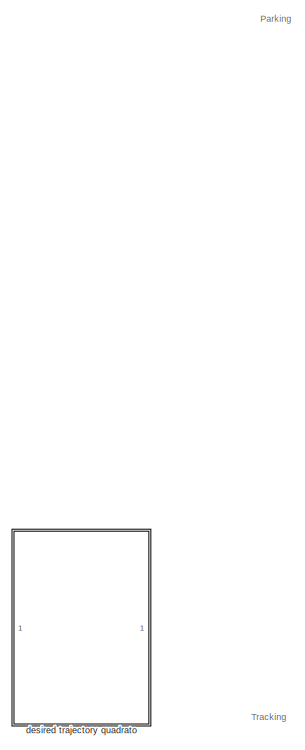
[diagram: root canvas - part 1/6, top left region]
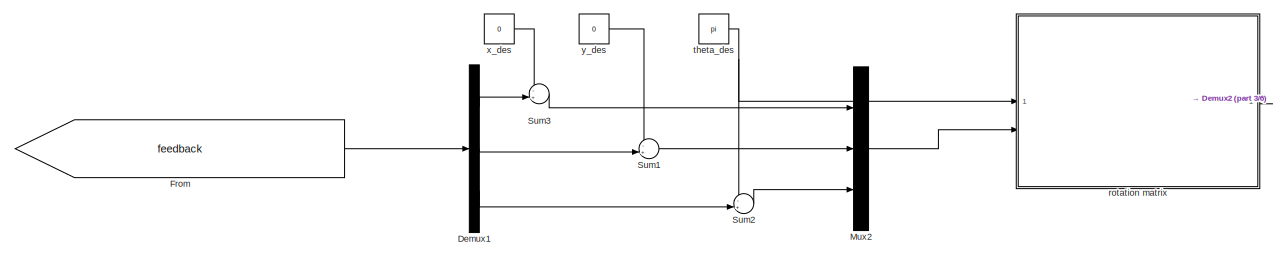
[diagram: root canvas - part 2/6, top left region]
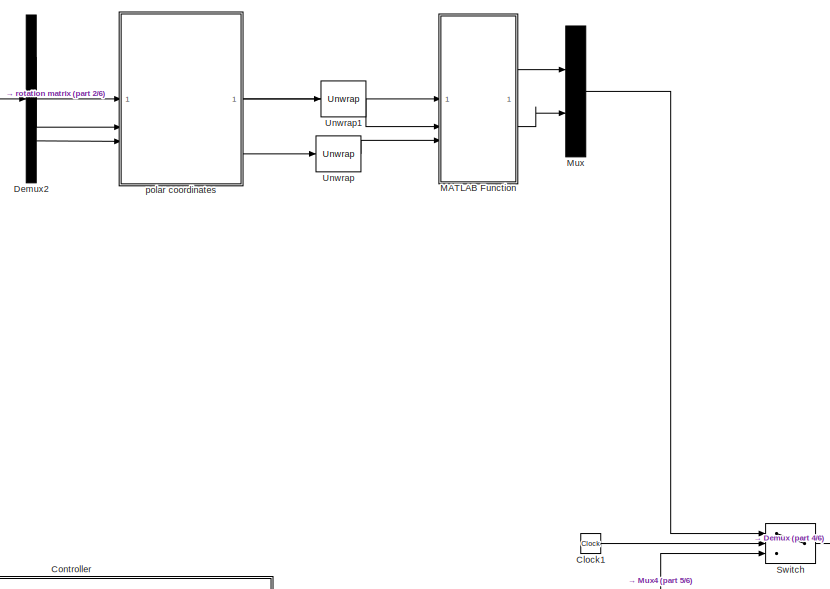
[diagram: root canvas - part 3/6, top center region]
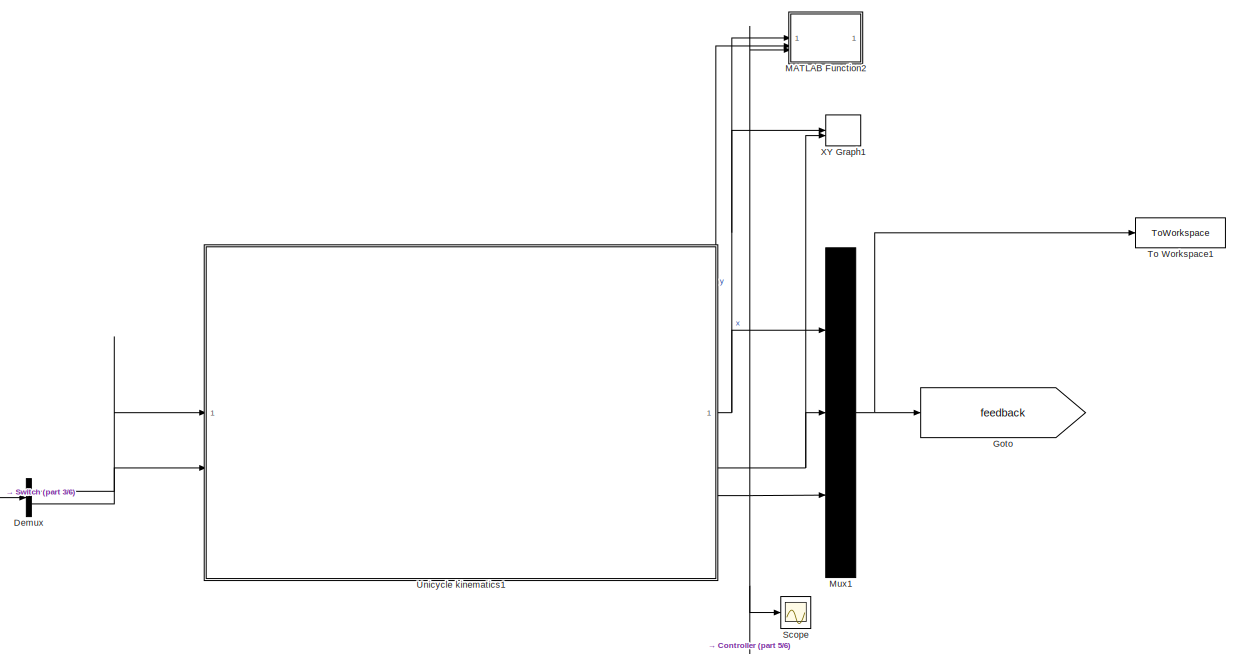
[diagram: root canvas - part 4/6, middle right region]
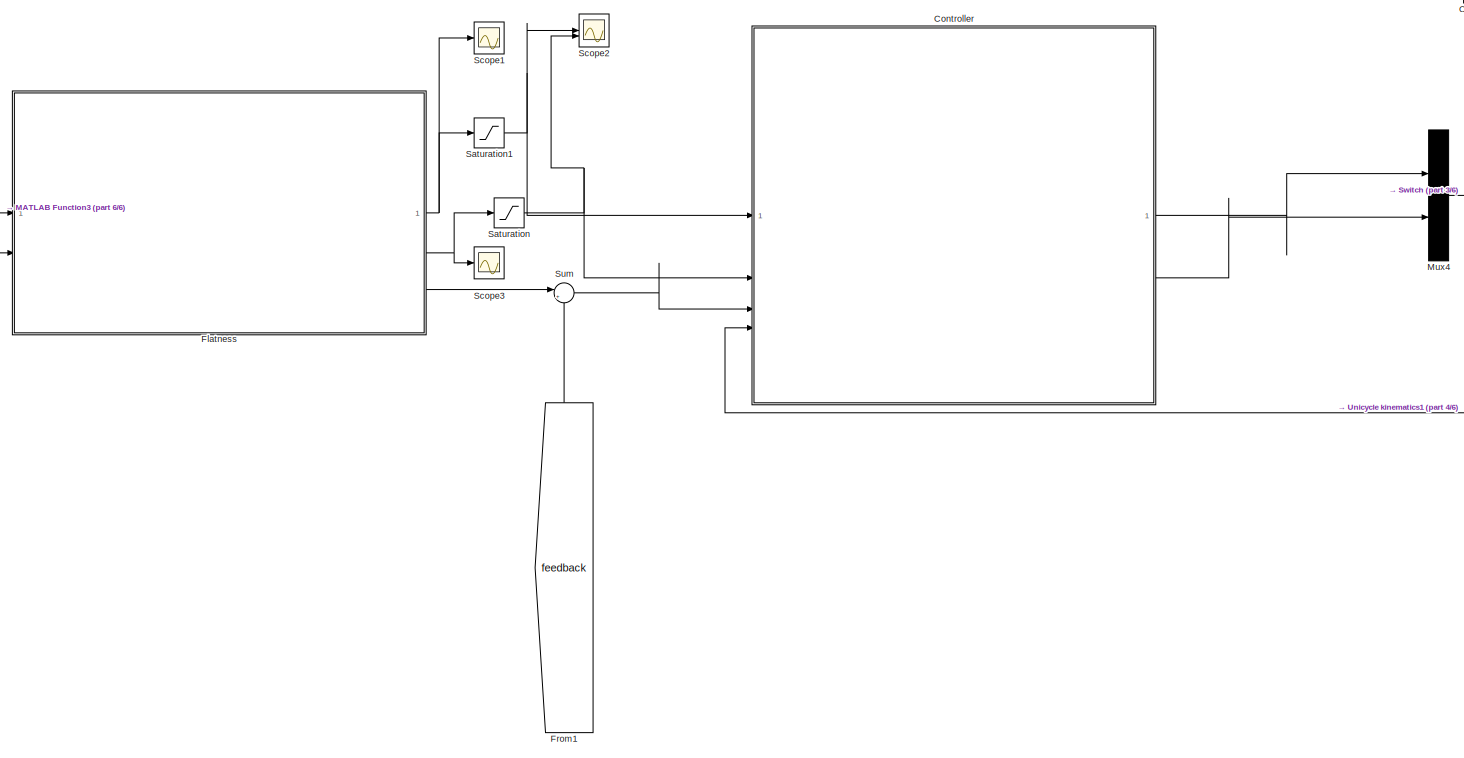
[diagram: root canvas - part 5/6, bottom center region]
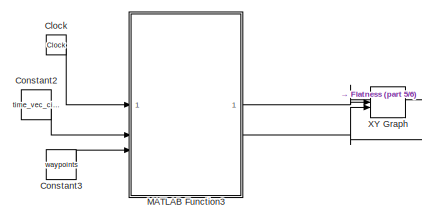
[diagram: root canvas - part 6/6, middle left region]
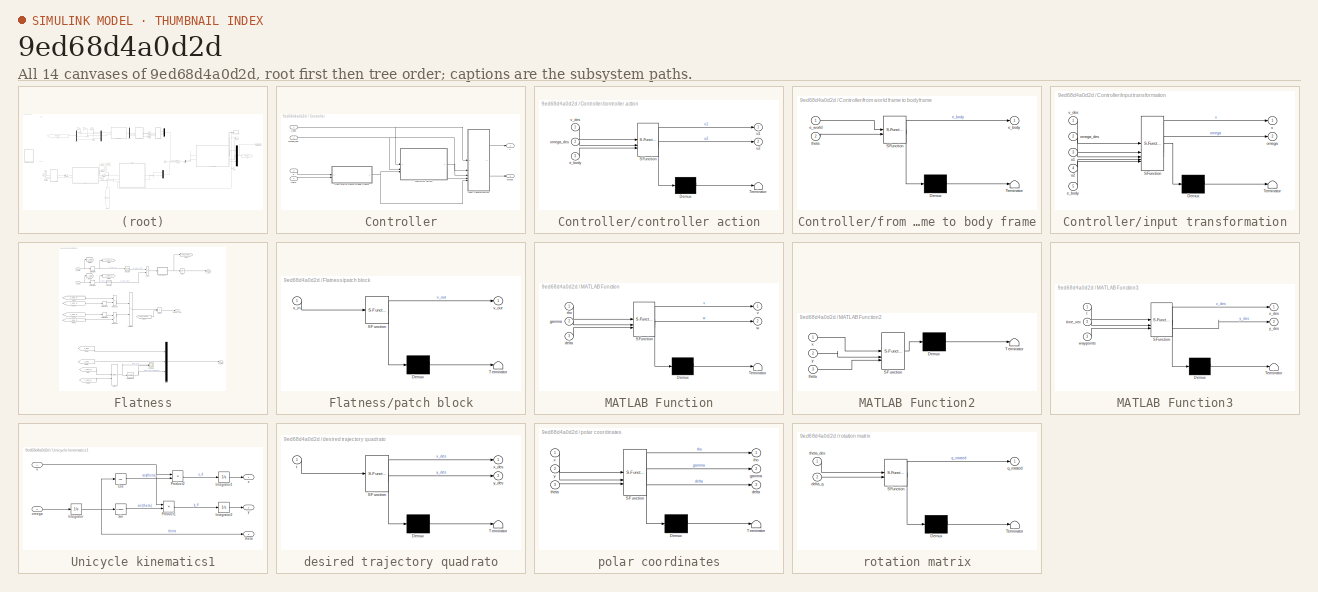
[diagram: thumbnail index - all 14 canvases of the model, root first then tree order]
MODEL slx_9ed68d4a0d2d
KIND model
CONFIG AbsTol = auto
CONFIG EnableMultiTasking = off
CONFIG FixedStep = 0.0001
CONFIG MaxStep = 0.01
CONFIG MinStep = auto
CONFIG RelTol = 1e-3
CONFIG SampleTimeConstraint = Unconstrained
CONFIG SolverName = ode5
CONFIG StartTime = 0.0
CONFIG StopTime = 25
BLOCK [Clock] Clock
BLOCK [Clock] Clock1
BLOCK [Constant] Constant2
  Value = time_vec_circ
BLOCK [Constant] Constant3
  Value = waypoints
BLOCK [SubSystem] Controller
BLOCK [SubSystem] Controller/controller action
  ErrorFcn = Stateflow.Translate.translate
  PermitHierarchicalResolution = ExplicitOnly
  SFBlockType = MATLAB Function
  TreatAsAtomicUnit = on
BLOCK [Demux] Controller/controller action/ Demux 
  Outputs = 1
BLOCK [S-Function] Controller/controller action/ SFunction 
  EnableBusSupport = off
  FunctionName = sf_sfun
  PortCounts = [3 3]
  SFcnIsStateOwnerBlock = off
  SFunctionDeploymentMode = off
  Tag = Stateflow S-Function 1
BLOCK [Terminator] Controller/controller action/ Terminator 
BLOCK [Inport] Controller/controller action/e_body
  Port = 3
BLOCK [Inport] Controller/controller action/omega_des
  Port = 2
BLOCK [Outport] Controller/controller action/u1
BLOCK [Outport] Controller/controller action/u2
  Port = 2
BLOCK [Inport] Controller/controller action/v_des
BLOCK [Inport] Controller/e
  Port = 3
BLOCK [SubSystem] Controller/from world frame to body frame
  ErrorFcn = Stateflow.Translate.translate
  PermitHierarchicalResolution = ExplicitOnly
  SFBlockType = MATLAB Function
  TreatAsAtomicUnit = on
BLOCK [Demux] Controller/from world frame to body frame/ Demux 
  Outputs = 1
BLOCK [S-Function] Controller/from world frame to body frame/ SFunction 
  EnableBusSupport = off
  FunctionName = sf_sfun
  PortCounts = [2 2]
  SFcnIsStateOwnerBlock = off
  SFunctionDeploymentMode = off
  Tag = Stateflow S-Function 2
BLOCK [Terminator] Controller/from world frame to body frame/ Terminator 
BLOCK [Outport] Controller/from world frame to body frame/e_body
BLOCK [Inport] Controller/from world frame to body frame/e_world
BLOCK [Inport] Controller/from world frame to body frame/theta
  Port = 2
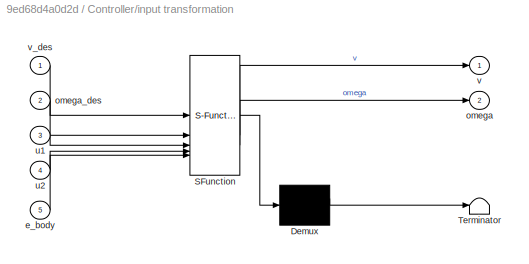
BLOCK [SubSystem] Controller/input transformation
  ErrorFcn = Stateflow.Translate.translate
  PermitHierarchicalResolution = ExplicitOnly
  SFBlockType = MATLAB Function
  TreatAsAtomicUnit = on
BLOCK [Demux] Controller/input transformation/ Demux 
  Outputs = 1
BLOCK [S-Function] Controller/input transformation/ SFunction 
  EnableBusSupport = off
  FunctionName = sf_sfun
  PortCounts = [5 3]
  SFcnIsStateOwnerBlock = off
  SFunctionDeploymentMode = off
  Tag = Stateflow S-Function 3
BLOCK [Terminator] Controller/input transformation/ Terminator 
BLOCK [Inport] Controller/input transformation/e_body
  Port = 5
BLOCK [Outport] Controller/input transformation/omega
  Port = 2
BLOCK [Inport] Controller/input transformation/omega_des
  Port = 2
BLOCK [Inport] Controller/input transformation/u1
  Port = 3
BLOCK [Inport] Controller/input transformation/u2
  Port = 4
BLOCK [Outport] Controller/input transformation/v
BLOCK [Inport] Controller/input transformation/v_des
BLOCK [Outport] Controller/omega
  Port = 2
BLOCK [Inport] Controller/omega_des
  Port = 2
BLOCK [Inport] Controller/theta
  Port = 4
BLOCK [Outport] Controller/v
BLOCK [Inport] Controller/v_des
BLOCK [Demux] Demux
  Outputs = 2
BLOCK [Demux] Demux1
  Outputs = 3
BLOCK [Demux] Demux2
  Outputs = 3
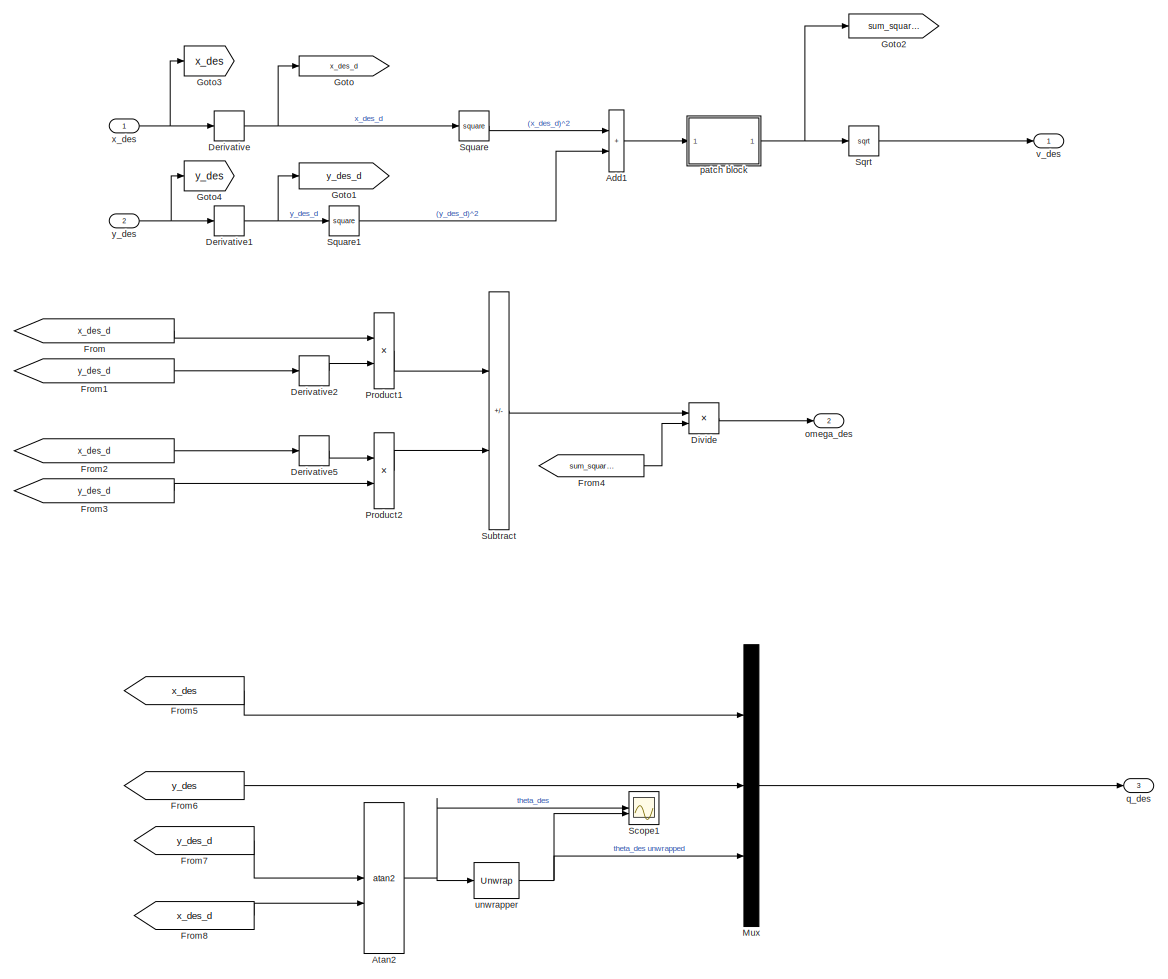
[diagram: Flatness - part 1/1, most of the canvas]
BLOCK [SubSystem] Flatness
BLOCK [Sum] Flatness/Add1
  IconShape = rectangular
BLOCK [Trigonometry] Flatness/Atan2
  Operator = atan2
BLOCK [Derivative] Flatness/Derivative
BLOCK [Derivative] Flatness/Derivative1
BLOCK [Derivative] Flatness/Derivative2
BLOCK [Derivative] Flatness/Derivative5
BLOCK [Product] Flatness/Divide
  Inputs = */
BLOCK [From] Flatness/From
  GotoTag = x_des_d
BLOCK [From] Flatness/From1
  GotoTag = y_des_d
BLOCK [From] Flatness/From2
  GotoTag = x_des_d
BLOCK [From] Flatness/From3
  GotoTag = y_des_d
BLOCK [From] Flatness/From4
  GotoTag = sum_squares
BLOCK [From] Flatness/From5
  GotoTag = x_des
BLOCK [From] Flatness/From6
  GotoTag = y_des
BLOCK [From] Flatness/From7
  GotoTag = y_des_d
BLOCK [From] Flatness/From8
  GotoTag = x_des_d
BLOCK [Goto] Flatness/Goto
  GotoTag = x_des_d
BLOCK [Goto] Flatness/Goto1
  GotoTag = y_des_d
BLOCK [Goto] Flatness/Goto2
  GotoTag = sum_squares
BLOCK [Goto] Flatness/Goto3
  GotoTag = x_des
BLOCK [Goto] Flatness/Goto4
  GotoTag = y_des
BLOCK [Mux] Flatness/Mux
  DisplayOption = bar
  Inputs = 3
BLOCK [Product] Flatness/Product1
BLOCK [Product] Flatness/Product2
BLOCK [Scope] Flatness/Scope1
  ActiveDisplayYMaximum = 10.473474164834791
  ActiveDisplayYMinimum = -16.66586404144536
  DataLoggingDecimateData = on
  DataLoggingDecimation = 1
  DataLoggingSaveFormat = Array
  DataLoggingVariableName = ScopeData2
  Floating = off
  GraphicalSettings = {"AxesScalingProperties":{"AlignXAxis":"Center","AlignYAxis":"Center","AutoScaleXAxisLimits":false,"AxesScaling":"Manual","AxesScalingNumUpdates":10,"ExpandOnly":true,"ScaleAxesLimitsAtStop":false,"XAxisDataRange":100,"YAxisDataRange":80},"DisplayProperties":{"ColorOrder":["auto","auto","auto","auto","auto","auto","auto","auto","auto","auto","auto","auto","auto","auto","auto","auto","auto","auto",...<+2145ch>
  MultipleDisplayCache = [{"MaxYLimMag":5.497787143782138,"MaxYLimReal":10.473474164834791,"MinYLimMag":0,"MinYLimReal":-16.66586404144536,"PlotAsMagnitudePhase":false,"ShowGrid":true,"ShowLegend":true,"Title":"%<SignalLabel>","YLabel":""}]
  NumInputPorts = 2
  ScopeFrameLocation = window
  ShowLegend = on
  WasSavedAsWebScope = on
  WindowPosition = [-16.000000,-11.000000,1924.000000,1061.000000,]
BLOCK [Sqrt] Flatness/Sqrt
BLOCK [Math] Flatness/Square
  Operator = square
BLOCK [Math] Flatness/Square1
  Operator = square
BLOCK [Sum] Flatness/Subtract
  IconShape = rectangular
  Inputs = +-
BLOCK [Outport] Flatness/omega_des
  Port = 2
BLOCK [SubSystem] Flatness/patch block
  ErrorFcn = Stateflow.Translate.translate
  PermitHierarchicalResolution = ExplicitOnly
  SFBlockType = MATLAB Function
  TreatAsAtomicUnit = on
BLOCK [Demux] Flatness/patch block/ Demux 
  Outputs = 1
BLOCK [S-Function] Flatness/patch block/ SFunction 
  EnableBusSupport = off
  FunctionName = sf_sfun
  PortCounts = [1 2]
  SFcnIsStateOwnerBlock = off
  SFunctionDeploymentMode = off
  Tag = Stateflow S-Function 5
BLOCK [Terminator] Flatness/patch block/ Terminator 
BLOCK [Inport] Flatness/patch block/v_in
BLOCK [Outport] Flatness/patch block/v_out
BLOCK [Outport] Flatness/q_des
  Port = 3
BLOCK [Reference] Flatness/unwrapper  REF=dspsigops/Unwrap
  SourceBlock = dspsigops/Unwrap
  SourceType = Unwrap
  UserDataPersistent = on
BLOCK [Outport] Flatness/v_des
BLOCK [Inport] Flatness/x_des
BLOCK [Inport] Flatness/y_des
  Port = 2
BLOCK [From] From
  GotoTag = feedback
BLOCK [From] From1
  GotoTag = feedback
  NameLocation = right
BLOCK [Goto] Goto
  GotoTag = feedback
BLOCK [SubSystem] MATLAB Function
  ErrorFcn = Stateflow.Translate.translate
  PermitHierarchicalResolution = ExplicitOnly
  SFBlockType = MATLAB Function
  TreatAsAtomicUnit = on
BLOCK [Demux] MATLAB Function/ Demux 
  Outputs = 1
BLOCK [S-Function] MATLAB Function/ SFunction 
  EnableBusSupport = off
  FunctionName = sf_sfun
  PortCounts = [3 3]
  SFcnIsStateOwnerBlock = off
  SFunctionDeploymentMode = off
  Tag = Stateflow S-Function 8
BLOCK [Terminator] MATLAB Function/ Terminator 
BLOCK [Inport] MATLAB Function/delta
  Port = 3
BLOCK [Inport] MATLAB Function/gamma
  Port = 2
BLOCK [Inport] MATLAB Function/rho
BLOCK [Outport] MATLAB Function/v
BLOCK [Outport] MATLAB Function/w
  Port = 2
BLOCK [SubSystem] MATLAB Function2
  ErrorFcn = Stateflow.Translate.translate
  PermitHierarchicalResolution = ExplicitOnly
  SFBlockType = MATLAB Function
  TreatAsAtomicUnit = on
BLOCK [Demux] MATLAB Function2/ Demux 
  Outputs = 1
BLOCK [S-Function] MATLAB Function2/ SFunction 
  EnableBusSupport = off
  FunctionName = sf_sfun
  PortCounts = [3 1]
  SFcnIsStateOwnerBlock = off
  SFunctionDeploymentMode = off
  Tag = Stateflow S-Function 9
BLOCK [Terminator] MATLAB Function2/ Terminator 
BLOCK [Inport] MATLAB Function2/theta
  Port = 3
BLOCK [Inport] MATLAB Function2/x
BLOCK [Inport] MATLAB Function2/y
  Port = 2
BLOCK [SubSystem] MATLAB Function3
  ErrorFcn = Stateflow.Translate.translate
  PermitHierarchicalResolution = ExplicitOnly
  SFBlockType = MATLAB Function
  TreatAsAtomicUnit = on
BLOCK [Demux] MATLAB Function3/ Demux 
  Outputs = 1
BLOCK [S-Function] MATLAB Function3/ SFunction 
  EnableBusSupport = off
  FunctionName = sf_sfun
  PortCounts = [3 3]
  SFcnIsStateOwnerBlock = off
  SFunctionDeploymentMode = off
  Tag = Stateflow S-Function 10
BLOCK [Terminator] MATLAB Function3/ Terminator 
BLOCK [Inport] MATLAB Function3/t
BLOCK [Inport] MATLAB Function3/time_vec
  Port = 2
BLOCK [Inport] MATLAB Function3/waypoints
  Port = 3
BLOCK [Outport] MATLAB Function3/x_des
BLOCK [Outport] MATLAB Function3/y_des
  Port = 2
BLOCK [Mux] Mux
  DisplayOption = bar
  Inputs = 2
BLOCK [Mux] Mux1
  DisplayOption = bar
  Inputs = 3
BLOCK [Mux] Mux2
  DisplayOption = bar
  Inputs = 3
BLOCK [Mux] Mux4
  DisplayOption = bar
  Inputs = 2
BLOCK [Saturate] Saturation
  LowerLimit = -ang_velocity
  UpperLimit = ang_velocity
BLOCK [Saturate] Saturation1
  LowerLimit = -speed
  UpperLimit = speed
BLOCK [Scope] Scope
  ActiveDisplayYMaximum = 10.713846589075981
  ActiveDisplayYMinimum = -2.2678628072381004
  DataLoggingVariableName = ScopeData1
  Floating = off
  GraphicalSettings = {"AxesScalingProperties":{"AlignXAxis":"Center","AlignYAxis":"Center","AutoScaleXAxisLimits":false,"AxesScaling":"Manual","AxesScalingNumUpdates":10,"ExpandOnly":true,"ScaleAxesLimitsAtStop":false,"XAxisDataRange":100,"YAxisDataRange":80},"DisplayProperties":{"ColorOrder":["auto","auto","auto","auto","auto","auto","auto","auto","auto","auto","auto","auto","auto","auto","auto","auto","auto","auto",...<+1944ch>
  MultipleDisplayCache = [{"MaxYLimMag":9.6120760026389611,"MaxYLimReal":10.713846589075981,"MinYLimMag":0,"MinYLimReal":-2.2678628072381004,"PlotAsMagnitudePhase":false,"ShowGrid":true,"ShowLegend":false,"Title":"%<SignalLabel>","YLabel":""}]
  NumInputPorts = 1
  ScopeFrameLocation = window
  WasSavedAsWebScope = on
  WindowPosition = [-320.000000,-148.000000,1924.000000,1061.000000,]
BLOCK [Scope] Scope1
  ActiveDisplayYMaximum = 33.790255014407059
  ActiveDisplayYMinimum = -58.541647894510909
  DataLoggingVariableName = ScopeData3
  Floating = off
  GraphicalSettings = {"AxesScalingProperties":{"AlignXAxis":"Center","AlignYAxis":"Center","AutoScaleXAxisLimits":false,"AxesScaling":"Manual","AxesScalingNumUpdates":10,"ExpandOnly":true,"ScaleAxesLimitsAtStop":false,"XAxisDataRange":100,"YAxisDataRange":80},"DisplayProperties":{"ColorOrder":["auto","auto","auto","auto","auto","auto","auto","auto","auto","auto","auto","auto","auto","auto","auto","auto","auto","auto",...<+2010ch>
  MultipleDisplayCache = [{"MaxYLimMag":14.301667362384991,"MaxYLimReal":33.790255014407059,"MinYLimMag":0,"MinYLimReal":-58.541647894510909,"PlotAsMagnitudePhase":false,"ShowGrid":true,"ShowLegend":false,"Title":"%<SignalLabel>","YLabel":""}]
  NumInputPorts = 1
  ScopeFrameLocation = window
  WasSavedAsWebScope = on
  WindowPosition = [618.000000,399.000000,657.000000,487.000000,]
BLOCK [Scope] Scope2
  ActiveDisplayYMaximum = 5.9509475084943659
  ActiveDisplayYMinimum = 0.14603727460674376
  Floating = off
  GraphicalSettings = {"AxesScalingProperties":{"AlignXAxis":"Center","AlignYAxis":"Center","AutoScaleXAxisLimits":false,"AxesScaling":"Manual","AxesScalingNumUpdates":10,"ExpandOnly":true,"ScaleAxesLimitsAtStop":false,"XAxisDataRange":100,"YAxisDataRange":80},"DisplayProperties":{"ColorOrder":["auto","auto","auto","auto","auto","auto","auto","auto","auto","auto","auto","auto","auto","auto","auto","auto","auto","auto",...<+2133ch>
  MultipleDisplayCache = [{"MaxYLimMag":116203.78948869799,"MaxYLimReal":5.9509475084943659,"MinYLimMag":0,"MinYLimReal":0.14603727460674376,"PlotAsMagnitudePhase":false,"ShowGrid":true,"ShowLegend":true,"Title":"%<SignalLabel>","YLabel":""}]
  NumInputPorts = 2
  ScopeFrameLocation = window
  ShowLegend = on
  WasSavedAsWebScope = on
  WindowPosition = [680.000000,330.000000,560.000000,420.000000,]
BLOCK [Scope] Scope3
  ActiveDisplayYMaximum = 7.1473011331260653E+9
  ActiveDisplayYMinimum = -7.9417132034456789E+8
  DataLoggingVariableName = ScopeData4
  Floating = off
  GraphicalSettings = {"Style":{"BackgroundColor":[0.12941176470588237,0.12941176470588237,0.12941176470588237],"AxesColor":[0.07058823529411765,0.07058823529411765,0.07058823529411765],"LabelsColor":[0.8509803921568627,0.8509803921568627,0.8509803921568627],"PreserveColors":false,"Visible":[true],"LineStyle":["-"],"LineWidth":[1.5],"BarWidth":[0.9],"LineColor":["auto"],"LineFaceAlpha":[1],"LineEdgeAlpha":[1],"Marker":...<+1999ch>
  MultipleDisplayCache = [{"MaxYLimMag":7.1473011331260653E+9,"MaxYLimReal":7.1473011331260653E+9,"MinYLimMag":0,"MinYLimReal":-7.9417132034456789E+8,"PlotAsMagnitudePhase":false,"ShowGrid":true,"ShowLegend":false,"Title":"%<SignalLabel>","YLabel":""}]
  NumInputPorts = 1
  ScopeFrameLocation = window
  WasSavedAsWebScope = on
  WindowPosition = [680.000000,330.000000,560.000000,420.000000,]
BLOCK [Sum] Sum
  Inputs = |+-
BLOCK [Sum] Sum1
  Inputs = -+|
BLOCK [Sum] Sum2
  Inputs = -+|
BLOCK [Sum] Sum3
  Inputs = -+|
BLOCK [Switch] Switch
  Criteria = u2 > Threshold
  InputSameDT = off
  SaturateOnIntegerOverflow = off
  Threshold = 17
BLOCK [ToWorkspace] To Workspace1
  FixptAsFi = on
  MaxDataPoints = inf
  SampleTime = -1
  SaveFormat = Timeseries
  VariableName = sim_pose1
BLOCK [SubSystem] Unicycle kinematics1
BLOCK [Trigonometry] Unicycle kinematics1/Cos
  Operator = cos
BLOCK [Integrator] Unicycle kinematics1/Integrator
  InitialCondition = pi
BLOCK [Integrator] Unicycle kinematics1/Integrator1
  InitialCondition = 10
BLOCK [Integrator] Unicycle kinematics1/Integrator2
BLOCK [Product] Unicycle kinematics1/Product1
BLOCK [Product] Unicycle kinematics1/Product2
BLOCK [Trigonometry] Unicycle kinematics1/Sin
BLOCK [Inport] Unicycle kinematics1/omega
  Port = 2
BLOCK [Outport] Unicycle kinematics1/theta
  Port = 3
BLOCK [Inport] Unicycle kinematics1/v
BLOCK [Outport] Unicycle kinematics1/x
BLOCK [Outport] Unicycle kinematics1/y
  Port = 2
BLOCK [Reference] Unwrap  REF=dspsigops/Unwrap
  SourceBlock = dspsigops/Unwrap
  SourceType = Unwrap
  UserDataPersistent = on
BLOCK [Reference] Unwrap1  REF=dspsigops/Unwrap
  SourceBlock = dspsigops/Unwrap
  SourceType = Unwrap
  UserDataPersistent = on
BLOCK [Record] XY Graph
  CompatibilityTag = XY
  FileSettingsInternal = {"entries":[{"content":{"excelSettings":{"content":{},"type":"Streamout.ExcelSettings"},"parquetSettings":{"content":{},"type":"Streamout.ParquetSettings"}},"type":"Streamout.FileSettingStorage","uuid":""}],"packageUris":["http:\/\/schema.mathworks.com\/mf0\/streamout_blocks\/R2020a"],"version":"1.0"}
  FrameSettings = [0, 0]
  Layout = [1 1]
  NumPorts = 2.0
  SignalsInternal = {"entries":[{"content":{"signals":[{"content":{"blockPath":[],"dimensions":[1],"domain":"","lineColor":"#a2142f","plots":[ 1 ],"port":1,"sid":[""],"signalID":1,"signalName":"MATLAB Function3:1"},"type":"RecordBlkView.Signal","uuid":""},{"content":{"blockPath":[],"dimensions":[1],"domain":"","lineColor":"#139fff","plots":[ 1 ],"port":2,"sid":[""],"signalID":2,"signalName":"MATLAB Function3:2"},"typ...<+182ch>
  VisualizationBindings = {"xyplotplugin":{"info":[{"series":[{"bindingParametersList":[{"parameter":"X-Axis","signalID":1,"signalName":"MATLAB Function3:1"},{"parameter":"Y-Axis","signalID":2,"signalName":"MATLAB Function3:2"}],"seriesID":0}],"subplotID":1}]}}
BLOCK [Record] XY Graph1
  CompatibilityTag = XY
  FileSettingsInternal = {"entries":[{"content":{"excelSettings":{"content":{},"type":"Streamout.ExcelSettings"},"parquetSettings":{"content":{},"type":"Streamout.ParquetSettings"}},"type":"Streamout.FileSettingStorage","uuid":""}],"packageUris":["http:\/\/schema.mathworks.com\/mf0\/streamout_blocks\/R2020a"],"version":"1.0"}
  FrameSettings = [0, 0]
  Layout = [1 1]
  NumPorts = 2.0
  SignalsInternal = {"entries":[{"content":{"signals":[{"content":{"blockPath":[],"dimensions":[1],"domain":"","lineColor":"#a2142f","plots":[ 1 ],"port":1,"sid":[""],"signalID":1,"signalName":"x"},"type":"RecordBlkView.Signal","uuid":""},{"content":{"blockPath":[],"dimensions":[1],"domain":"","lineColor":"#139fff","plots":[ 1 ],"port":2,"sid":[""],"signalID":2,"signalName":"y"},"type":"RecordBlkView.Signal","uuid":"...<+148ch>
  VisualizationBindings = {"xyplotplugin":{"info":[{"series":[{"bindingParametersList":[{"parameter":"X-Axis","signalID":1,"signalName":"x"},{"parameter":"Y-Axis","signalID":2,"signalName":"y"}],"seriesID":0}],"subplotID":1}]}}
BLOCK [SubSystem] desired trajectory quadrato
  ErrorFcn = Stateflow.Translate.translate
  PermitHierarchicalResolution = ExplicitOnly
  SFBlockType = MATLAB Function
  TreatAsAtomicUnit = on
BLOCK [Demux] desired trajectory quadrato/ Demux 
  Outputs = 1
BLOCK [S-Function] desired trajectory quadrato/ SFunction 
  EnableBusSupport = off
  FunctionName = sf_sfun
  PortCounts = [1 3]
  SFcnIsStateOwnerBlock = off
  SFunctionDeploymentMode = off
  Tag = Stateflow S-Function 6
BLOCK [Terminator] desired trajectory quadrato/ Terminator 
BLOCK [Inport] desired trajectory quadrato/t
BLOCK [Outport] desired trajectory quadrato/x_des
BLOCK [Outport] desired trajectory quadrato/y_des
  Port = 2
BLOCK [SubSystem] polar coordinates
  ErrorFcn = Stateflow.Translate.translate
  PermitHierarchicalResolution = ExplicitOnly
  SFBlockType = MATLAB Function
  TreatAsAtomicUnit = on
BLOCK [Demux] polar coordinates/ Demux 
  Outputs = 1
BLOCK [S-Function] polar coordinates/ SFunction 
  EnableBusSupport = off
  FunctionName = sf_sfun
  PortCounts = [3 4]
  SFcnIsStateOwnerBlock = off
  SFunctionDeploymentMode = off
  Tag = Stateflow S-Function 11
BLOCK [Terminator] polar coordinates/ Terminator 
BLOCK [Outport] polar coordinates/delta
  Port = 3
BLOCK [Outport] polar coordinates/gamma
  Port = 2
BLOCK [Outport] polar coordinates/rho
BLOCK [Inport] polar coordinates/theta
  Port = 3
BLOCK [Inport] polar coordinates/x
BLOCK [Inport] polar coordinates/y
  Port = 2
BLOCK [SubSystem] rotation matrix
  ErrorFcn = Stateflow.Translate.translate
  PermitHierarchicalResolution = ExplicitOnly
  SFBlockType = MATLAB Function
  TreatAsAtomicUnit = on
BLOCK [Demux] rotation matrix/ Demux 
  Outputs = 1
BLOCK [S-Function] rotation matrix/ SFunction 
  EnableBusSupport = off
  FunctionName = sf_sfun
  PortCounts = [2 2]
  SFcnIsStateOwnerBlock = off
  SFunctionDeploymentMode = off
  Tag = Stateflow S-Function 4
BLOCK [Terminator] rotation matrix/ Terminator 
BLOCK [Inport] rotation matrix/delta_q
  Port = 2
BLOCK [Outport] rotation matrix/q_rotated
BLOCK [Inport] rotation matrix/theta_des
BLOCK [Constant] theta_des
  Value = pi
BLOCK [Constant] x_des
  Value = 0
BLOCK [Constant] y_des
  Value = 0
ANNOTATION (root): Parking
ANNOTATION (root): Tracking
LINE Clock1:1 -> Switch:2
LINE Clock:1 -> MATLAB Function3:1
LINE Constant2:1 -> MATLAB Function3:2
LINE Constant3:1 -> MATLAB Function3:3
LINE Controller/controller action:1 -> Controller/input transformation:3
LINE Controller/controller action:2 -> Controller/input transformation:4
LINE Controller/e:1 -> Controller/from world frame to body frame:1
NET Controller/from world frame to body frame:1 -> Controller/controller action:3, Controller/input transformation:5
LINE Controller/input transformation:1 -> Controller/v:1
LINE Controller/input transformation:2 -> Controller/omega:1
NET Controller/omega_des:1 -> Controller/controller action:2, Controller/input transformation:2
LINE Controller/theta:1 -> Controller/from world frame to body frame:2
NET Controller/v_des:1 -> Controller/controller action:1, Controller/input transformation:1
LINE Controller:1 -> Mux4:1
LINE Controller:2 -> Mux4:2
LINE Demux1:1 -> Sum3:2
LINE Demux1:2 -> Sum1:2
LINE Demux1:3 -> Sum2:2
LINE Demux2:1 -> polar coordinates:1
LINE Demux2:2 -> polar coordinates:2
LINE Demux2:3 -> polar coordinates:3
LINE Demux:1 -> Unicycle kinematics1:1
LINE Demux:2 -> Unicycle kinematics1:2
LINE Flatness/Add1:1 -> Flatness/patch block:1
NET Flatness/Atan2:1 -> Flatness/Scope1:1, Flatness/unwrapper:1
NET Flatness/Derivative1:1 -> Flatness/Goto1:1, Flatness/Square1:1
LINE Flatness/Derivative2:1 -> Flatness/Product1:2
LINE Flatness/Derivative5:1 -> Flatness/Product2:1
NET Flatness/Derivative:1 -> Flatness/Goto:1, Flatness/Square:1
LINE Flatness/Divide:1 -> Flatness/omega_des:1
LINE Flatness/From1:1 -> Flatness/Derivative2:1
LINE Flatness/From2:1 -> Flatness/Derivative5:1
LINE Flatness/From3:1 -> Flatness/Product2:2
LINE Flatness/From4:1 -> Flatness/Divide:2
LINE Flatness/From5:1 -> Flatness/Mux:1
LINE Flatness/From6:1 -> Flatness/Mux:2
LINE Flatness/From7:1 -> Flatness/Atan2:1
LINE Flatness/From8:1 -> Flatness/Atan2:2
LINE Flatness/From:1 -> Flatness/Product1:1
LINE Flatness/Mux:1 -> Flatness/q_des:1
LINE Flatness/Product1:1 -> Flatness/Subtract:1
LINE Flatness/Product2:1 -> Flatness/Subtract:2
LINE Flatness/Sqrt:1 -> Flatness/v_des:1
LINE Flatness/Square1:1 -> Flatness/Add1:2
LINE Flatness/Square:1 -> Flatness/Add1:1
LINE Flatness/Subtract:1 -> Flatness/Divide:1
NET Flatness/patch block:1 -> Flatness/Goto2:1, Flatness/Sqrt:1
NET Flatness/unwrapper:1 -> Flatness/Mux:3, Flatness/Scope1:2
NET Flatness/x_des:1 -> Flatness/Derivative:1, Flatness/Goto3:1
NET Flatness/y_des:1 -> Flatness/Derivative1:1, Flatness/Goto4:1
NET Flatness:1 -> Saturation1:1, Scope1:1
NET Flatness:2 -> Saturation:1, Scope3:1
LINE Flatness:3 -> Sum:1
LINE From1:1 -> Sum:2
LINE From:1 -> Demux1:1
NET MATLAB Function3:1 -> Flatness:1, XY Graph:1
NET MATLAB Function3:2 -> Flatness:2, XY Graph:2
LINE MATLAB Function:1 -> Mux:1
LINE MATLAB Function:2 -> Mux:2
NET Mux1:1 -> Goto:1, To Workspace1:1
LINE Mux2:1 -> rotation matrix:2
LINE Mux4:1 -> Switch:3
LINE Mux:1 -> Switch:1
NET Saturation1:1 -> Controller:1, Scope2:1
NET Saturation:1 -> Controller:2, Scope2:2
LINE Sum1:1 -> Mux2:2
LINE Sum2:1 -> Mux2:3
LINE Sum3:1 -> Mux2:1
LINE Sum:1 -> Controller:3
LINE Switch:1 -> Demux:1
LINE Unicycle kinematics1/Cos:1 -> Unicycle kinematics1/Product2:2
LINE Unicycle kinematics1/Integrator1:1 -> Unicycle kinematics1/x:1
LINE Unicycle kinematics1/Integrator2:1 -> Unicycle kinematics1/y:1
NET Unicycle kinematics1/Integrator:1 -> Unicycle kinematics1/Cos:1, Unicycle kinematics1/Sin:1, Unicycle kinematics1/theta:1
LINE Unicycle kinematics1/Product1:1 -> Unicycle kinematics1/Integrator2:1
LINE Unicycle kinematics1/Product2:1 -> Unicycle kinematics1/Integrator1:1
LINE Unicycle kinematics1/Sin:1 -> Unicycle kinematics1/Product1:2
LINE Unicycle kinematics1/omega:1 -> Unicycle kinematics1/Integrator:1
NET Unicycle kinematics1/v:1 -> Unicycle kinematics1/Product1:1, Unicycle kinematics1/Product2:1
NET Unicycle kinematics1:1 -> MATLAB Function2:1, Mux1:1, XY Graph1:1
NET Unicycle kinematics1:2 -> MATLAB Function2:2, Mux1:2, XY Graph1:2
NET Unicycle kinematics1:3 -> Controller:4, MATLAB Function2:3, Mux1:3, Scope:1
LINE Unwrap1:1 -> MATLAB Function:2
LINE Unwrap:1 -> MATLAB Function:3
LINE polar coordinates:1 -> MATLAB Function:1
LINE polar coordinates:2 -> Unwrap1:1
LINE polar coordinates:3 -> Unwrap:1
LINE rotation matrix:1 -> Demux2:1
NET theta_des:1 -> Sum2:1, rotation matrix:1
LINE x_des:1 -> Sum3:1
LINE y_des:1 -> Sum1:1
note: NET lines group one-source signal fan-out (src -> all destinations, sorted); 1:1 wires keep LINE
CHART Controller/controller action states=1 transitions=1
  STATE_LABEL 'eML_blk_kernel()'
  STATE_LABEL 'SCRIPT:\nfunction [u1, u2] = fcn(v_des, omega_des, e_body)\n\n% TO DO: parametri da modfiicare\nd = 1/sqrt(2);\na = 10; %10;\n\n\n\n% parametri controllore\nk1 = 2*d*a;\n\n% if abs(v_des) < 1e-4\n%     if v_des >= 0\n%         v_des = 1e-4;\n%     else\n%         v_des = -1e-4;\n%     end\n% end\n\nk3 = k1;\nk2 = ( a^2-(omega_des)^2 ) / v_des;\n\nu1 = [-k1, 0, 0] * e_body;\nu2 = [0, -k2, -k3] * e_body;\n\n'
CHART Controller/from world frame to body frame states=1 transitions=1
  STATE_LABEL 'eML_blk_kernel()'
  STATE_LABEL 'SCRIPT:\nfunction e_body = fcn(e_world, theta)\n\n\n% Transformation matrix\nR = [cos(theta), sin(theta), 0; \n    -sin(theta), cos(theta), 0;\n    0, 0, 1];\n\n% get error in body frame\ne_body = R*e_world;\n'
CHART Controller/input transformation states=1 transitions=1
  STATE_LABEL 'eML_blk_kernel()'
  STATE_LABEL 'SCRIPT:\nfunction [v, omega] = fcn(v_des, omega_des, u1, u2, e_body)\n\n\nv = v_des * cos(e_body(3)) - u1;\nomega = omega_des - u2;\n'
CHART rotation matrix states=1 transitions=1
  STATE_LABEL 'eML_blk_kernel()'
  STATE_LABEL 'SCRIPT:\nfunction q_rotated  = fcn(theta_des, delta_q)\n\n% rotation matrix\nR = [cos(theta_des), sin(theta_des), 0;\n    -sin(theta_des), cos(theta_des), 0; \n    0,              0,              1];\n\n% rotate\nq_rotated = R*delta_q;\n'
CHART Flatness/patch block states=1 transitions=1
  STATE_LABEL 'eML_blk_kernel()'
  STATE_LABEL 'SCRIPT:\nfunction v_out = fcn(v_in)\n\nif abs(v_in) < 1e-4\n    if v_in >= 0\n        v_in = 1e-4;\n    else\n        v_in = -1e-4;\n    end\nend\nv_out = v_in;\n\n'
CHART desired trajectory quadrato states=1 transitions=1
  STATE_LABEL 'eML_blk_kernel()'
  STATE_LABEL 'SCRIPT:\nfunction [x_des, y_des] = fcn(t)\n\n% % configurable:\n% radius = 5;\n% omega_des = 0.2;\n% \n% % desired trajectory\n% x_des = -radius*cos(omega_des*t);\n% y_des = -radius*sin(omega_des*t);\n\n\n% % configurable:\n% radius = 10;\n% omega_des = 0.5;\n% \n% % desired trajectory\n% x_des = radius*cos(omega_des*t);\n% y_des = radius*sin(omega_des*t);\n% \n\n\nif t <= 10\n    x_des = 10+t;\n    y_des = 10;\nelseif  t...<+183ch>'
CHART MATLAB Function states=1 transitions=1
  STATE_LABEL 'eML_blk_kernel()'
  STATE_LABEL 'SCRIPT:\nfunction [v , w] = fcn(rho, gamma, delta)\n\n% adjust gains\nk1 = 3;%3\nk2 = 6;%6\nk3 = 1.5;%1.5\n\n\n% controller\n\nv = k1*rho*cos(gamma);\n\nif (abs(gamma) > 0.001)\n    temp = sin(gamma)/gamma;\nelse\n    temp = 1;\nend\n\nw = k2*gamma + (k1*temp*cos(gamma))*(gamma+k3*delta);\n\nif rho < 0.01\n    v = 0;\n    w = 0;\nend\n\n'
CHART MATLAB Function2 states=1 transitions=1
  STATE_LABEL 'eML_blk_kernel()'
  STATE_LABEL "SCRIPT:\nfunction Animazione_Mappa(x, y, theta)\n    % Dichiara la funzione come esterna a Simulink\n    coder.extrinsic('real_time_traj');\n    \n    % Passa i dati alla funzione MATLAB standard\n    real_time_traj(x, y, theta);\nend"
CHART MATLAB Function3 states=1 transitions=1
  STATE_LABEL 'eML_blk_kernel()'
  STATE_LABEL "SCRIPT:\nfunction [x_des, y_des] = fcn(t, time_vec, waypoints)\n\n    t_start_circle = time_vec(8);\n    t_end_circle = time_vec(9);\n\n    if t <= t_start_circle\n\n        t_1 = time_vec(1:8);\n        traj_x_1 = waypoints(1:8, 1);\n        traj_y_1 = waypoints(1:8, 2);\n\n        x_des = interp1(t_1, traj_x_1, t, 'pchip');\n        y_des = interp1(t_1, traj_y_1, t, 'pchip');\n\n    elseif t > t_start_circle &...<+1017ch>"
CHART polar coordinates states=1 transitions=1
  STATE_LABEL 'eML_blk_kernel()'
  STATE_LABEL 'SCRIPT:\nfunction [rho, gamma, delta] = fcn(x, y, theta)\n\nrho = sqrt(x^2+y^2);\ngamma = atan2(y, x) + pi - theta;\ndelta = gamma + theta;\n\n'
CHART  states=0 transitions=0
CHART  states=0 transitions=0
CHART  states=0 transitions=0
CHART  states=0 transitions=0
CHART  states=0 transitions=0
CHART  states=0 transitions=0
CHART  states=0 transitions=0
CHART  states=0 transitions=0
CHART  states=0 transitions=0
CHART  states=0 transitions=0
